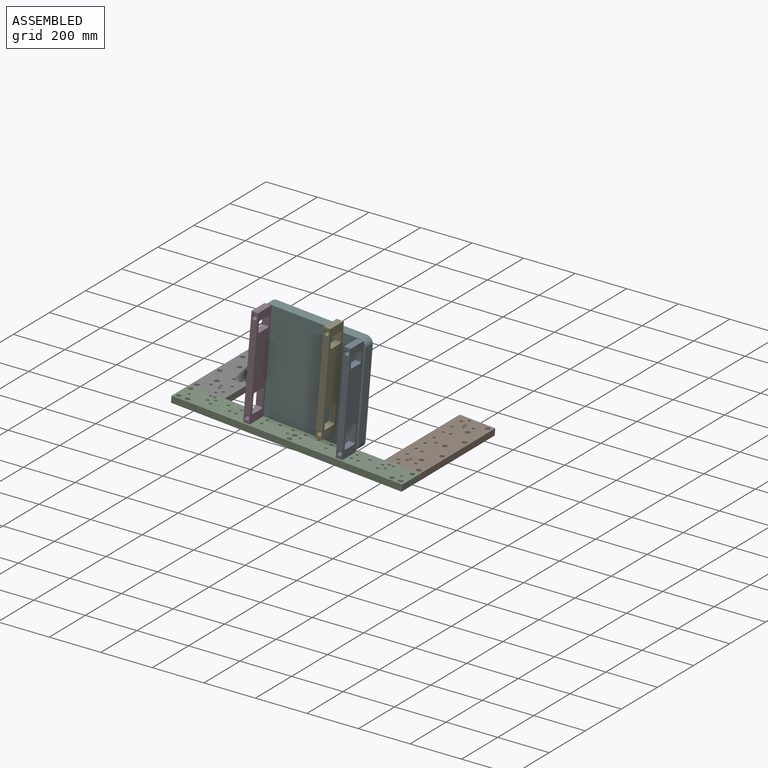
[diagram: assembled view]
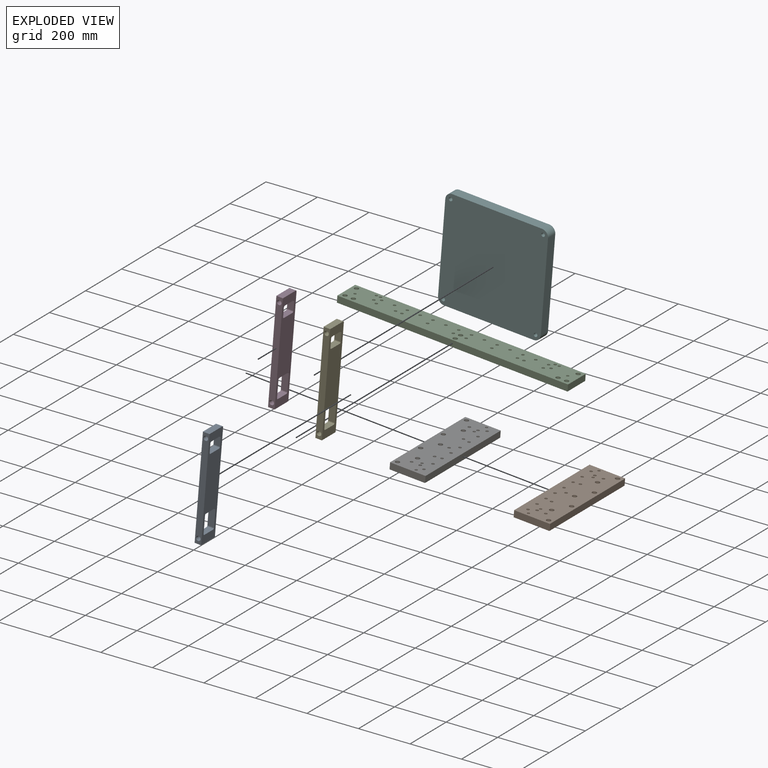
[diagram: exploded view]
GUIDED TOUR — MATED ASSEMBLY (Onshape document a9ae81b943653e950b26079e, AutoMate assembly a9ae81b943653e950b26079e_a7e712e7776d5e4f3e4a3951_ff51b67d0b98021b33cd613c_default)

This assembly has 7 components, labeled P0..P6 below (a component is one placed occurrence of a part; the same part can appear more than once), held together by 12 mates. A mate is a constraint between two components; its type names the relative motion it leaves free:
  CYLINDRICAL — leaves both rotation about and translation along the listed axis free,
  PLANAR — leaves sliding in the plane through the listed point (normal = the listed direction) and rotation about that normal free.
Axis/direction vectors are unit vectors and 'through' points are millimeter coordinates, both in the assembly's world frame.

MATES
  1. PLANAR "Planar 6": P1 <-> P2, direction (0.000, -1.000, 0.000) through (-307.10, 135.23, -792.93) mm
  2. PLANAR "Planar 4": P2 <-> P6, direction (0.081, 0.000, 0.997) through (-1027.70, 90.23, -721.72) mm
  3. CYLINDRICAL "Cylindrical 3": P5 <-> P3, axis (0.000, 1.000, 0.000) through (-814.91, 129.65, -357.74) mm
  4. PLANAR "Planar 11": P0 <-> P5, direction (0.000, 1.000, 0.000) through (-470.86, 119.65, -568.92) mm
  5. PLANAR "Planar 2": P6 <-> P2, direction (-0.997, 0.000, 0.081) through (-1132.39, 343.73, -725.97) mm
  6. PLANAR "Planar 5": P1 <-> P2, direction (0.081, 0.000, 0.997) through (-320.03, 264.23, -779.14) mm
  7. PLANAR "Planar 7": P1 <-> P2, direction (0.997, 0.000, -0.081) through (-237.33, 344.23, -798.59) mm
  8. CYLINDRICAL "Cylindrical 1": P0 <-> P5, axis (0.000, 1.000, 0.000) through (-485.20, 43.45, -745.67) mm
  9. PLANAR "Planar 13": P3 <-> P2, direction (-0.081, 0.000, -0.997) through (-845.64, 81.55, -736.49) mm
  10. PLANAR "Planar 14": P3 <-> P5, direction (0.000, 1.000, 0.000) through (-829.68, 119.65, -539.81) mm
  11. PLANAR "Planar 12": P0 <-> P5, direction (0.000, 1.000, 0.000) through (-470.86, 119.65, -568.92) mm
  12. PLANAR "Planar 3": P2 <-> P6, direction (0.000, 1.000, 0.000) through (-684.86, 135.23, -762.28) mm

ASSEMBLY ORDER
  1. P4 — the base component [order verified]
  2. P3 [order verified]
  3. P0 [order verified]
  4. P2 [order verified]
  5. P5 [order verified]
  6. P6 [order verified]
  7. P1 [order verified]
Order-tag legend:
  [order verified] — this step's position reverses a verified removal order: the component was checked to insert without passing through the ones already placed.

Of the 7 components, 3 carry the full construction recipe — the FeatureScript program that regenerates the part's solid from scratch; the rest are supplied as boundary geometry only.
Each toured component is shown spotlighted twice — in the assembled view, then in the exploded view, where a leader line traces a displaced component back to its assembled socket (saturated green if recipe-attached, orange if geometry-only; every other component desaturated gray) — followed by its recipe or geometry summary and the mates that hold it.
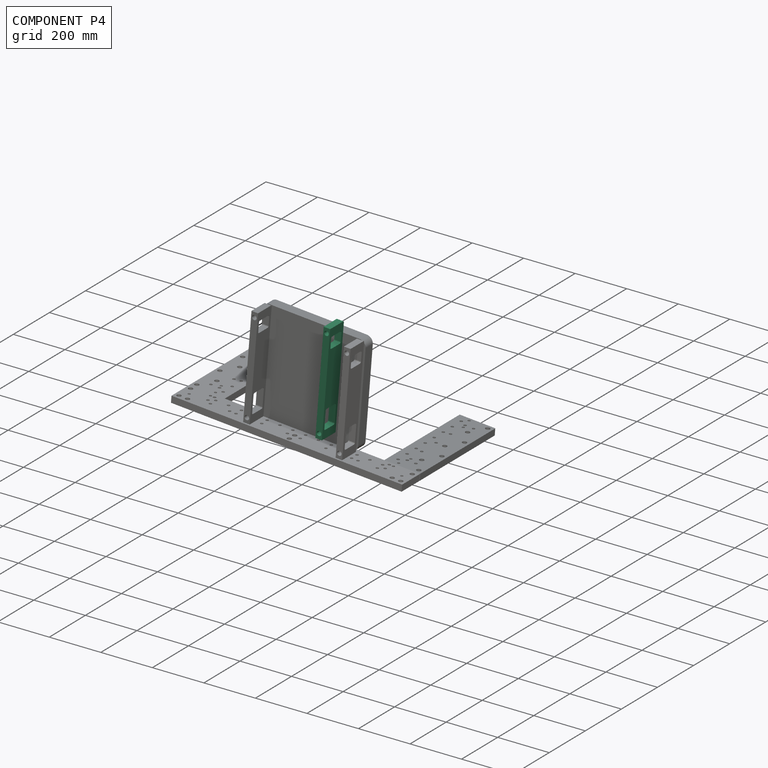
[diagram: component P4 — assembled]
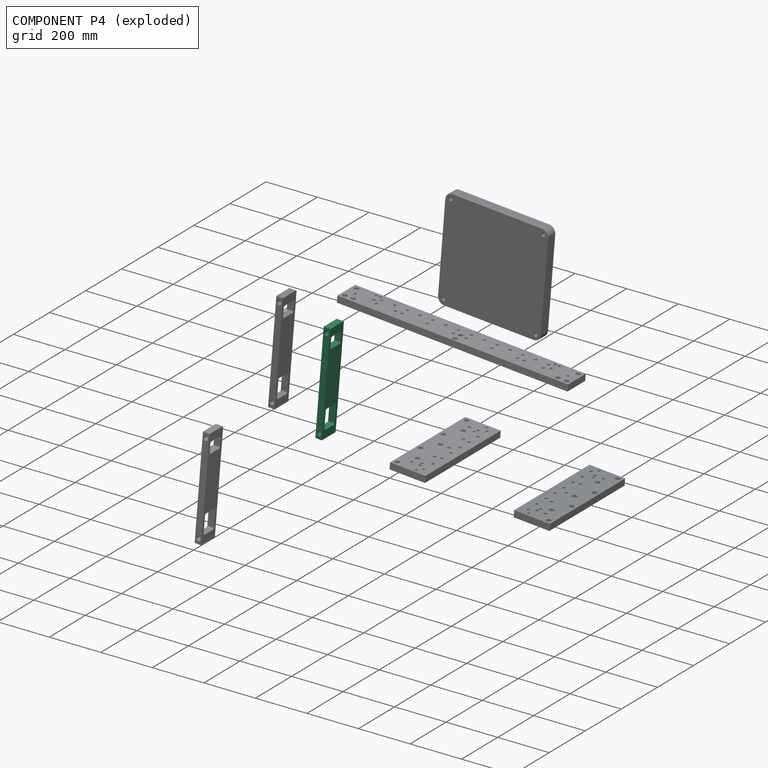
[diagram: component P4 — exploded]
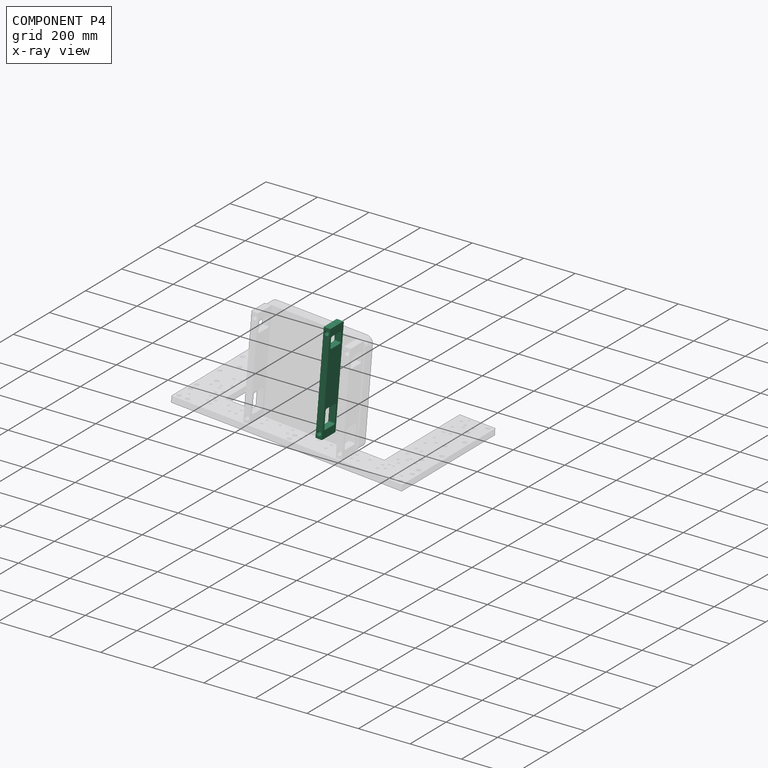
[diagram: component P4 — x-ray view]
COMPONENT P4 — same part as P0 (CADFS 00772965); its construction recipe is shown at P0.
Held by: no mates (free).
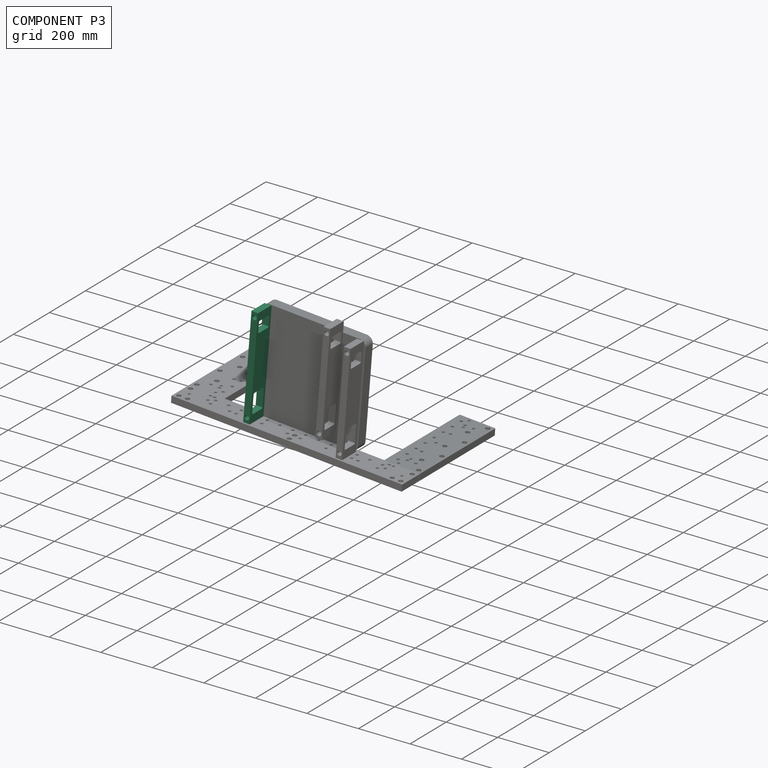
[diagram: component P3 — assembled]
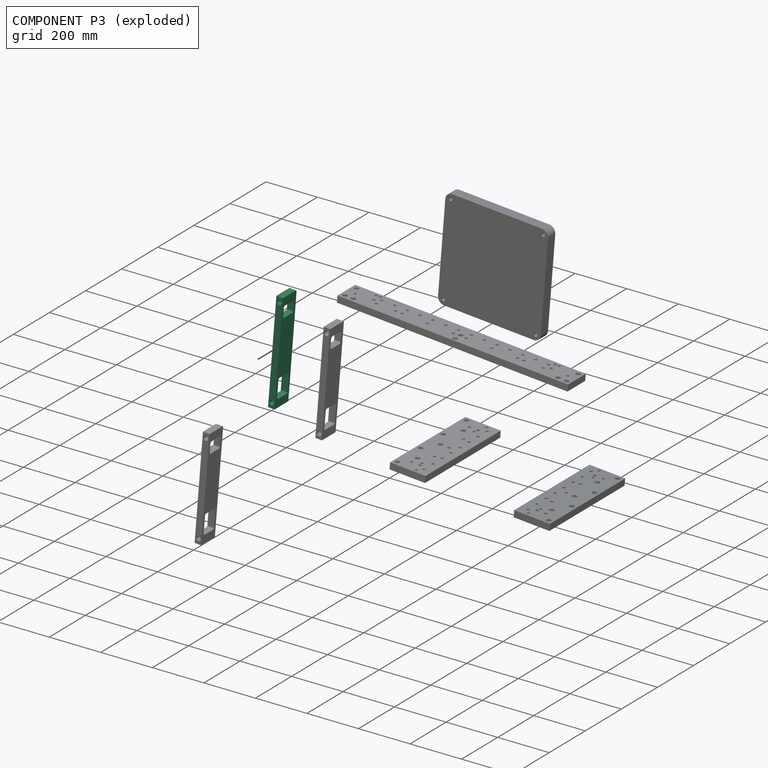
[diagram: component P3 — exploded]
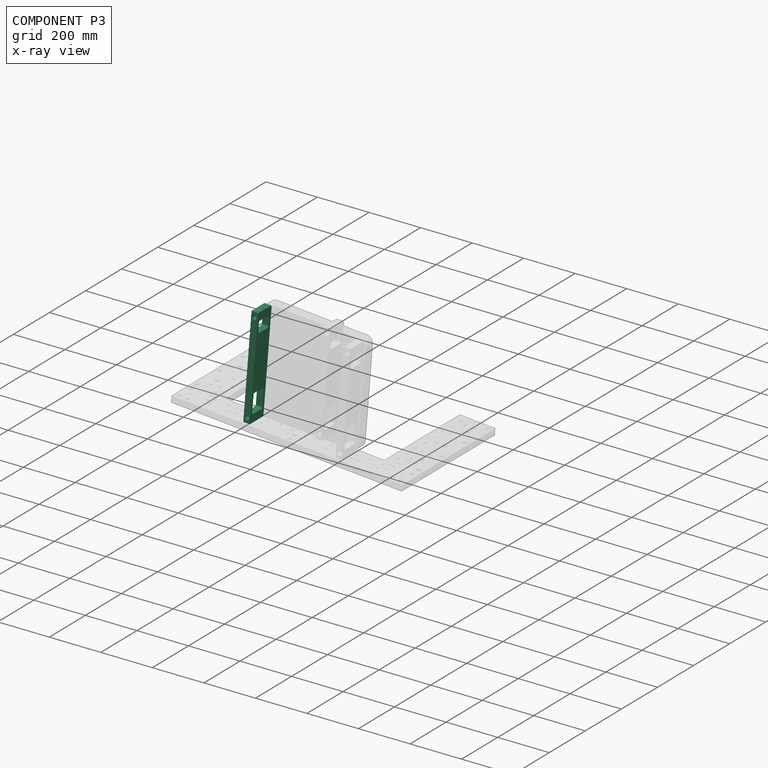
[diagram: component P3 — x-ray view]
COMPONENT P3 — same part as P0 (CADFS 00772965); its construction recipe is shown at P0.
Held by: CYLINDRICAL mate "Cylindrical 3" to P5; PLANAR mate "Planar 13" to P2; PLANAR mate "Planar 14" to P5.
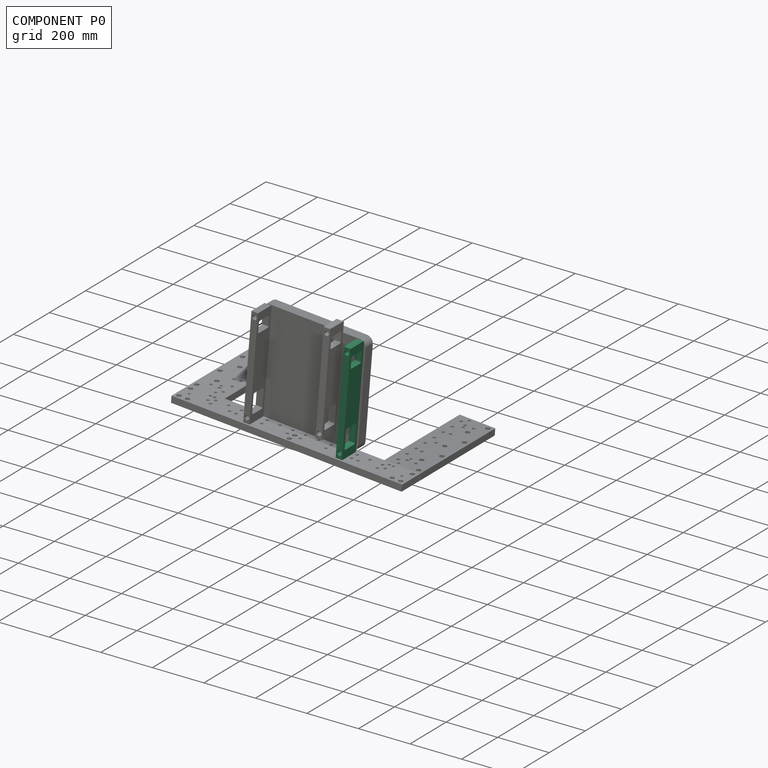
[diagram: component P0 — assembled]
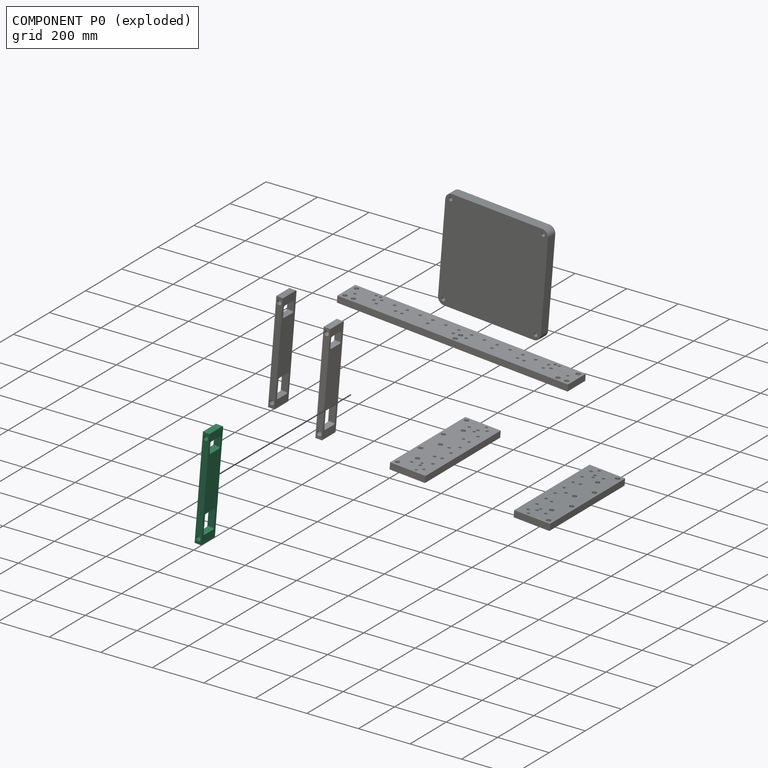
[diagram: component P0 — exploded]
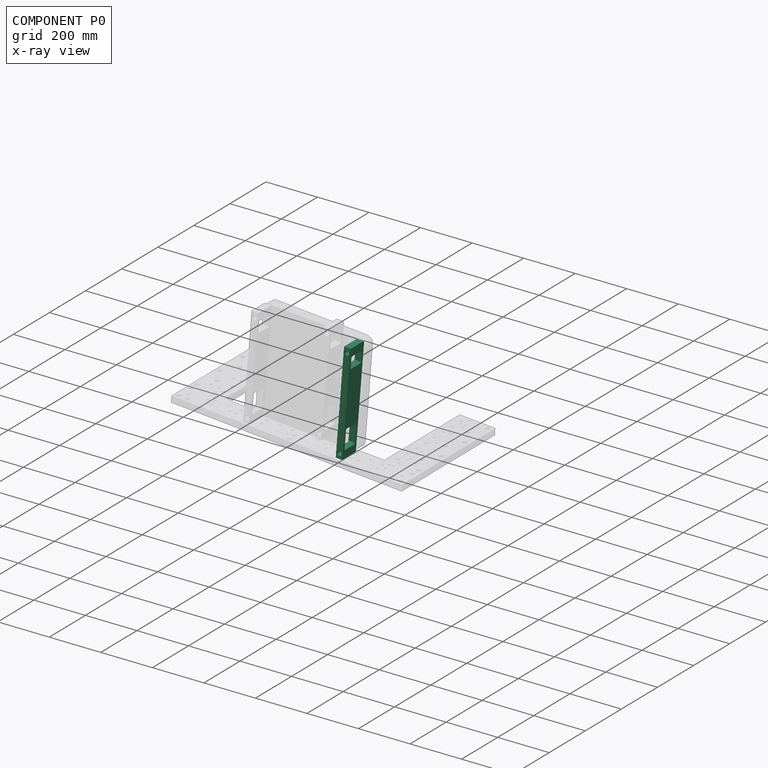
[diagram: component P0 — x-ray view]
COMPONENT P0 — recipe-attached (CADFS 00772965, mesh-verified: the recipe's output STEP matches this component's geometry to below the mesh-comparison resolution (tessellation chordal tolerance ~0.612 mm)).
Held by: PLANAR mate "Planar 11" to P5; CYLINDRICAL mate "Cylindrical 1" to P5; PLANAR mate "Planar 12" to P5.
Construction recipe (FeatureScript — the CAD program that rebuilds this solid; sketch coordinates are in the units given by the * unit suffixes, e.g. mm):

FeatureScript 1511;
import(path : "onshape/std/geometry.fs", version : "1511.0");
import(path : "onshape/std/common.fs", version : "1511.0");
const mm = millimeter;
const VERTEX = EntityType.VERTEX;
const EDGE = EntityType.EDGE;
const FACE = EntityType.FACE;
const BODY = EntityType.BODY;
function v(x, y){return vector(x, y);}
function OD(order){return orderDisambiguation(order);}
function OSD(set){return originalSetDisambiguation(set);}
function TD(topology){return topologyDisambiguation(topology);}
function TDD(query){return trueDependencyDisambiguation(query);}
function sQuery(a, b, c) {return sketchEntityQuery(a, b, c);}

annotation { "Feature Type Name" : "Feature", "Feature Type Description" : "" }
export const myFeature = defineFeature(function(context is Context, id is Id, definition is map)
    precondition{}
    {
        {
            var Q0;
            Q0=qCreatedBy(makeId("Front.planeOp"),FACE);
            var sketch = newSketch(context, id + "F0", { "sketchPlane" : qUnion([Q0])});
            skLineSegment(sketch, "E0", {"start": v(0, 0) * mm, "end": v(0, 400) * mm});
            skLineSegment(sketch, "E1", {"start": v(0, 400) * mm, "end": v(76.2, 400) * mm});
            skLineSegment(sketch, "E2", {"start": v(0, 0) * mm, "end": v(76.2, 0) * mm});
            skLineSegment(sketch, "E3", {"start": v(76.2, 0) * mm, "end": v(76.2, 400) * mm});
            skLineSegment(sketch, "E4", {"start": v(76.2, 400) * mm, "end": v(76.2, 400) * mm});
            skSolve(sketch);
        }
        {
            var Q0;
            Q0=makeQuery(id+"F0.imprint","IMPRINT",FACE,{"disambiguationData":[TD([[makeQuery(id+"F0.imprint","IMPRINT",EDGE,{"derivedFrom":sQuery(id+"F0.wireOp",EDGE,"E0")}),-1.0]])]});
            extrude(context, id + "F1", {"entities" : qUnion([Q0]), "depth" : 25.4 * mm, "offsetDistance" : 25.4 * mm});
        }
        {
            var Q0;
            Q0=makeQuery(id+"F1.opExtrude","SWEPT_FACE",FACE,{"disambiguationData":[OSD([sQuery(id+"F0.wireOp",EDGE,"E3")])]});
            var sketch = newSketch(context, id + "F2", { "sketchPlane" : qUnion([Q0])});
            skLineSegment(sketch, "E5", {"start": v(-12.7, 0) * mm, "end": v(-12.7, 20) * mm});
            skLineSegment(sketch, "E6", {"start": v(-12.7, 20) * mm, "end": v(-12.7, 380) * mm});
            skSolve(sketch);
        }
        {
            var Q0;
            Q0=sQuery(id+"F2.wireOp",VERTEX,"E6.end");
            var Q1;
            Q1=sQuery(id+"F2.wireOp",VERTEX,"E5.end");
            var Q2;
            Q2=makeQuery(id+"F1.opExtrude","SWEPT_BODY",BODY,{"disambiguationData":[OSD([sQuery(id+"F0.wireOp",EDGE,"E0"),sQuery(id+"F0.wireOp",EDGE,"E1"),sQuery(id+"F0.wireOp",EDGE,"E2"),sQuery(id+"F0.wireOp",EDGE,"E3")])]});
            hole(context, id + "F3", {"style" : HoleStyle.SIMPLE, "endStyle" : HoleEndStyle.THROUGH, "standardTappedOrClearance" : lookupTablePath({ "standard" : "ISO", "fit" : "Normal", "size" : "M16", "type" : "Clearance" }), "standardBlindInLast" : lookupTablePath({ "fit" : "Standard", "standard" : "ISO", "size" : "M16", "type" : "Clearance" }), "holeDiameter" : 17.5 * mm, "majorDiameter" : 6.35 * mm, "tappedDepth" : 19.4 * mm, "tapClearance" : 3, "locations" : qUnion([Q0, Q1]), "scope" : qUnion([Q2])});
        }
        {
            var Q0;
            Q0=makeQuery(id+"F1.opExtrude","CAP_FACE",FACE,{"disambiguationData":[OSD([sQuery(id+"F0.wireOp",EDGE,"E0"),sQuery(id+"F0.wireOp",EDGE,"E1"),sQuery(id+"F0.wireOp",EDGE,"E2"),sQuery(id+"F0.wireOp",EDGE,"E3")])],"isStart":false});
            var sketch = newSketch(context, id + "F4", { "sketchPlane" : qUnion([Q0])});
            skLineSegment(sketch, "E7", {"start": v(0, 0) * mm, "end": v(9.53, 0) * mm});
            skLineSegment(sketch, "E8", {"start": v(76.2, 0) * mm, "end": v(66.67, 0) * mm});
            skLineSegment(sketch, "E9", {"start": v(66.67, 0) * mm, "end": v(66.67, 32) * mm});
            skLineSegment(sketch, "E10", {"start": v(9.53, 0) * mm, "end": v(9.53, 32) * mm});
            skLineSegment(sketch, "E11.bottom", {"start": v(9.52, 32) * mm, "end": v(66.68, 32) * mm});
            skLineSegment(sketch, "E11.top", {"start": v(9.52, 108.2) * mm, "end": v(66.67, 108.2) * mm});
            skLineSegment(sketch, "E11.left", {"start": v(9.53, 32) * mm, "end": v(9.53, 108.2) * mm});
            skLineSegment(sketch, "E11.right", {"start": v(66.68, 32) * mm, "end": v(66.67, 108.2) * mm});
            skLineSegment(sketch, "E12", {"start": v(0, 200) * mm, "end": v(22.17, 200) * mm});
            skLineSegment(sketch, "E13.MirrorCS", {"start": v(9.52, 368) * mm, "end": v(66.68, 368) * mm});
            skLineSegment(sketch, "E14.top", {"start": v(9.52, 323.55) * mm, "end": v(66.68, 323.55) * mm});
            skLineSegment(sketch, "E14.left", {"start": v(9.52, 368) * mm, "end": v(9.52, 323.55) * mm});
            skLineSegment(sketch, "E14.right", {"start": v(66.68, 368) * mm, "end": v(66.68, 323.55) * mm});
            skSolve(sketch);
        }
        {
            var Q0;
            Q0=makeQuery(id+"F4.imprint","IMPRINT",FACE,{"disambiguationData":[TD([[makeQuery(id+"F4.imprint","IMPRINT",EDGE,{"derivedFrom":sQuery(id+"F4.wireOp",EDGE,"E11.bottom")}),1.0]])]});
            var Q1;
            Q1=makeQuery(id+"F4.imprint","IMPRINT",FACE,{"disambiguationData":[TD([[makeQuery(id+"F4.imprint","IMPRINT",EDGE,{"derivedFrom":sQuery(id+"F4.wireOp",EDGE,"E13.MirrorCS")}),-1.0]])]});
            extrude(context, id + "F5", {"entities" : qUnion([Q0, Q1]), "operationType" : NewBodyOperationType.REMOVE, "endBound" : BoundingType.THROUGH_ALL, "oppositeDirection" : true, "depth" : 25.4 * mm, "offsetDistance" : 25.4 * mm});
        }
        {
            var Q0;
            Q0=makeQuery(id+"F5.boolean.opBoolean","COPY",EDGE,{"derivedFrom":makeQuery(id+"F5.opExtrude","SWEPT_EDGE",EDGE,{"disambiguationData":[OSD([sQuery(id+"F4.wireOp",EDGE,"E11.top"),sQuery(id+"F4.wireOp",EDGE,"E11.left")])]})});
            var Q1;
            Q1=makeQuery(id+"F5.boolean.opBoolean","COPY",EDGE,{"derivedFrom":makeQuery(id+"F5.opExtrude","SWEPT_EDGE",EDGE,{"disambiguationData":[OSD([sQuery(id+"F4.wireOp",EDGE,"E11.top"),sQuery(id+"F4.wireOp",EDGE,"E11.right")])]})});
            var Q2;
            Q2=makeQuery(id+"F5.boolean.opBoolean","COPY",EDGE,{"derivedFrom":makeQuery(id+"F5.opExtrude","SWEPT_EDGE",EDGE,{"disambiguationData":[OSD([sQuery(id+"F4.wireOp",EDGE,"E9"),sQuery(id+"F4.wireOp",EDGE,"E11.bottom"),sQuery(id+"F4.wireOp",EDGE,"E11.right")])]})});
            var Q3;
            Q3=makeQuery(id+"F5.boolean.opBoolean","COPY",EDGE,{"derivedFrom":makeQuery(id+"F5.opExtrude","SWEPT_EDGE",EDGE,{"disambiguationData":[OSD([sQuery(id+"F4.wireOp",EDGE,"E10"),sQuery(id+"F4.wireOp",EDGE,"E11.bottom"),sQuery(id+"F4.wireOp",EDGE,"E11.left")])]})});
            var Q4;
            Q4=makeQuery(id+"F5.boolean.opBoolean","COPY",EDGE,{"derivedFrom":makeQuery(id+"F5.opExtrude","SWEPT_EDGE",EDGE,{"disambiguationData":[OSD([sQuery(id+"F4.wireOp",EDGE,"E14.top"),sQuery(id+"F4.wireOp",EDGE,"E14.left")])]})});
            var Q5;
            Q5=makeQuery(id+"F5.boolean.opBoolean","COPY",EDGE,{"derivedFrom":makeQuery(id+"F5.opExtrude","SWEPT_EDGE",EDGE,{"disambiguationData":[OSD([sQuery(id+"F4.wireOp",EDGE,"E14.top"),sQuery(id+"F4.wireOp",EDGE,"E14.right")])]})});
            var Q6;
            Q6=makeQuery(id+"F5.boolean.opBoolean","COPY",EDGE,{"derivedFrom":makeQuery(id+"F5.opExtrude","SWEPT_EDGE",EDGE,{"disambiguationData":[OSD([sQuery(id+"F4.wireOp",EDGE,"E13.MirrorCS"),sQuery(id+"F4.wireOp",EDGE,"E14.left")])]})});
            var Q7;
            Q7=makeQuery(id+"F5.boolean.opBoolean","COPY",EDGE,{"derivedFrom":makeQuery(id+"F5.opExtrude","SWEPT_EDGE",EDGE,{"disambiguationData":[OSD([sQuery(id+"F4.wireOp",EDGE,"E13.MirrorCS"),sQuery(id+"F4.wireOp",EDGE,"E14.right")])]})});
            fillet(context, id + "F6", {"entities" : qUnion([Q0, Q1, Q2, Q3, Q4, Q5, Q6, Q7]), "radius" : 5.08 * mm, "tangentPropagation" : true, "allowEdgeOverflow" : false});
        }
        {
            var Q0;
            Q0=makeQuery(id+"F1.opExtrude","SWEPT_EDGE",EDGE,{"disambiguationData":[OSD([sQuery(id+"F0.wireOp",EDGE,"E1"),sQuery(id+"F0.wireOp",EDGE,"E3")])]});
            fillet(context, id + "F7", {"entities" : qUnion([Q0]), "radius" : 5.08 * mm, "tangentPropagation" : true, "allowEdgeOverflow" : false});
        }
    });
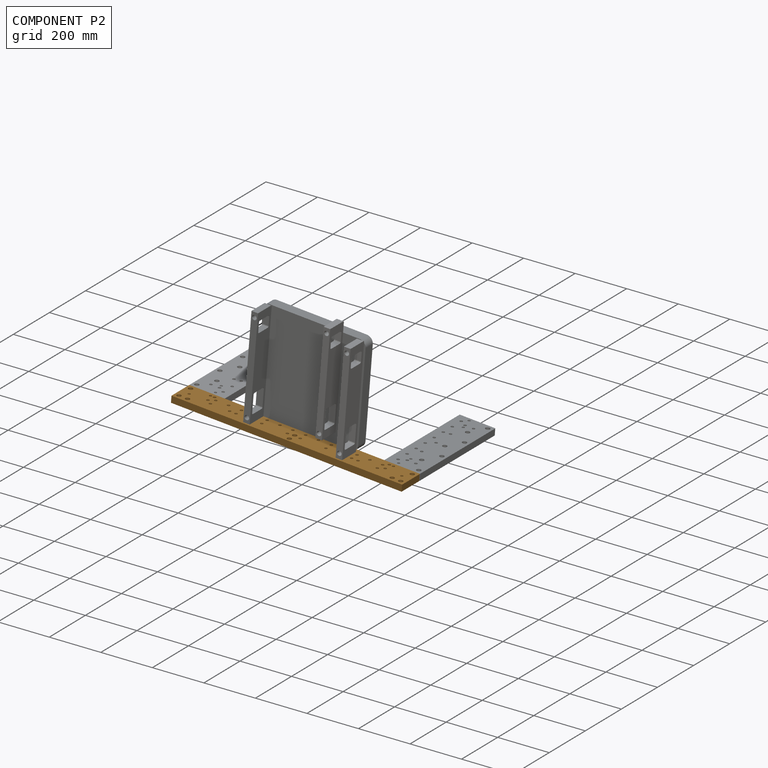
[diagram: component P2 — assembled]
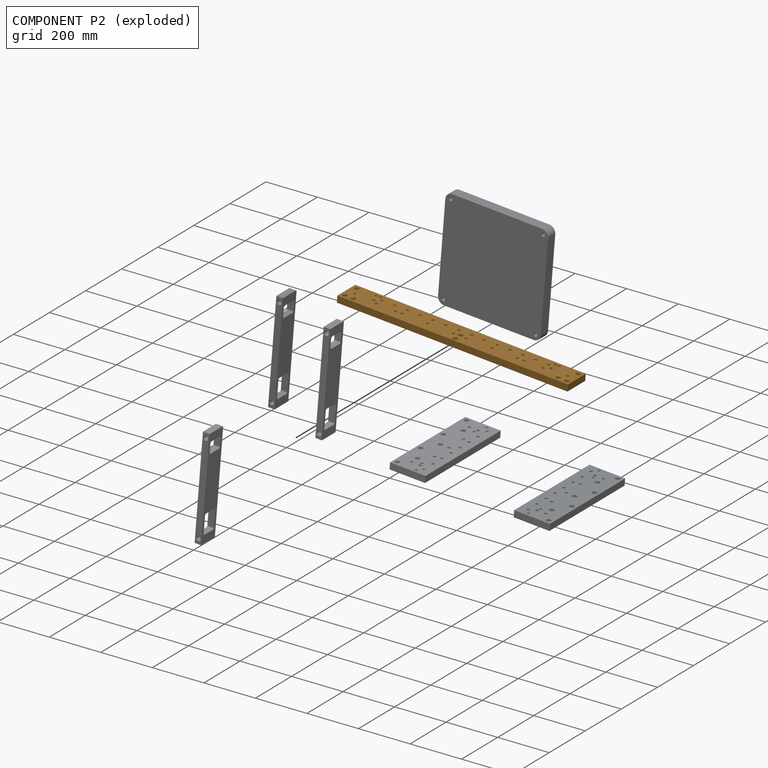
[diagram: component P2 — exploded]
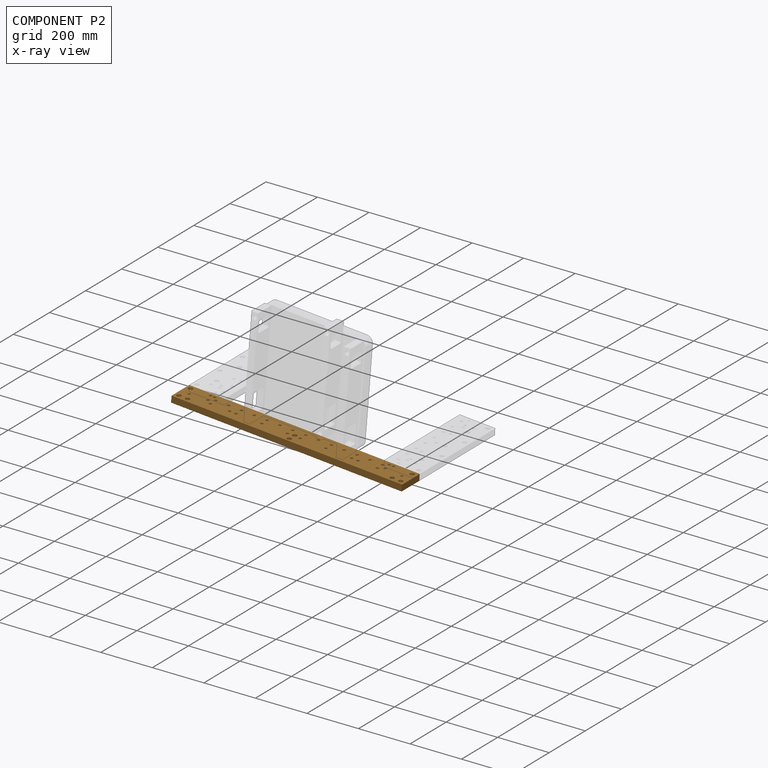
[diagram: component P2 — x-ray view]
COMPONENT P2 — geometry summary (no construction recipe available for this part):
  bounding box: 898.0 x 99.0 x 25.4 mm
  B-rep topology: 1 solid, 50 faces, 288 edges
  volume: 2136396 mm^3 (95% of its bounding box)
  symmetry: 2-fold rotationally symmetric about the y axis; mirror-symmetric across its x mid-plane, z mid-plane
Held by: PLANAR mate "Planar 6" to P1; PLANAR mate "Planar 4" to P6; PLANAR mate "Planar 2" to P6; PLANAR mate "Planar 5" to P1; PLANAR mate "Planar 7" to P1; PLANAR mate "Planar 13" to P3; PLANAR mate "Planar 3" to P6.
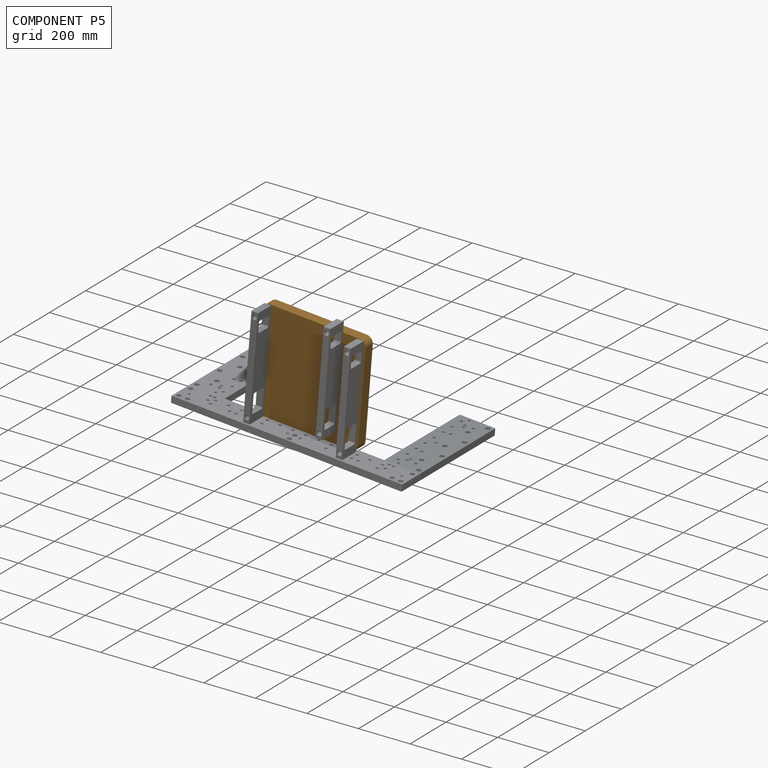
[diagram: component P5 — assembled]
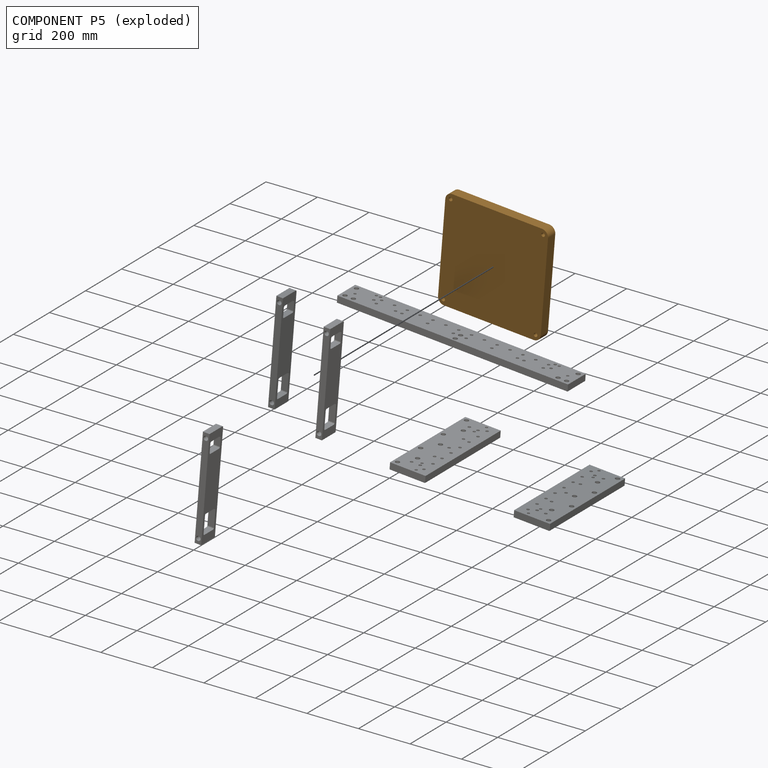
[diagram: component P5 — exploded]
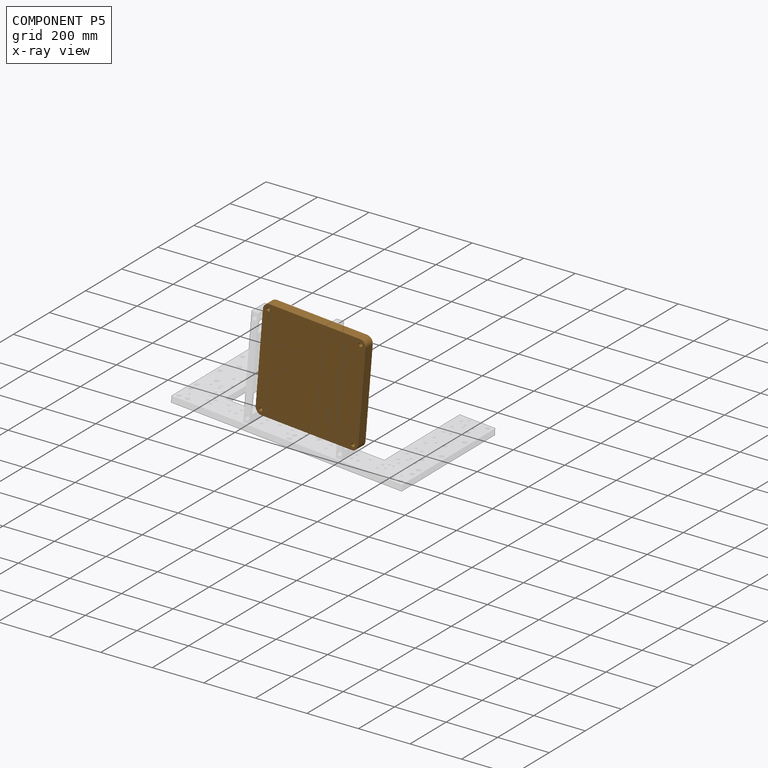
[diagram: component P5 — x-ray view]
COMPONENT P5 — geometry summary (no construction recipe available for this part):
  bounding box: 400.0 x 400.0 x 40.0 mm
  B-rep topology: 1 solid, 22 faces, 96 edges
  volume: 6324676 mm^3 (99% of its bounding box)
  symmetry: 4-fold rotationally symmetric about the y axis; mirror-symmetric across its x mid-plane, z mid-plane
Held by: CYLINDRICAL mate "Cylindrical 3" to P3; PLANAR mate "Planar 11" to P0; CYLINDRICAL mate "Cylindrical 1" to P0; PLANAR mate "Planar 14" to P3; PLANAR mate "Planar 12" to P0.
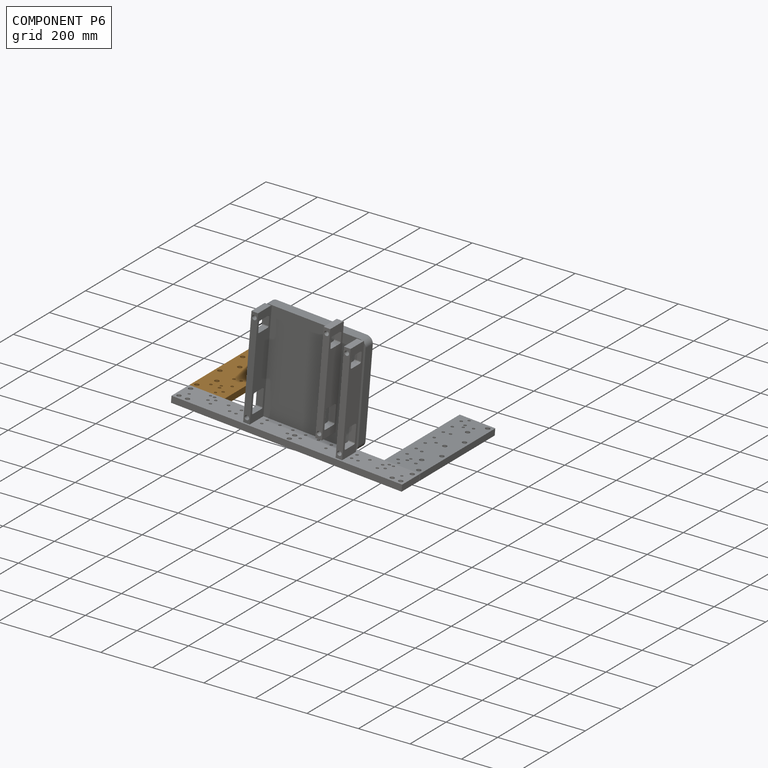
[diagram: component P6 — assembled]
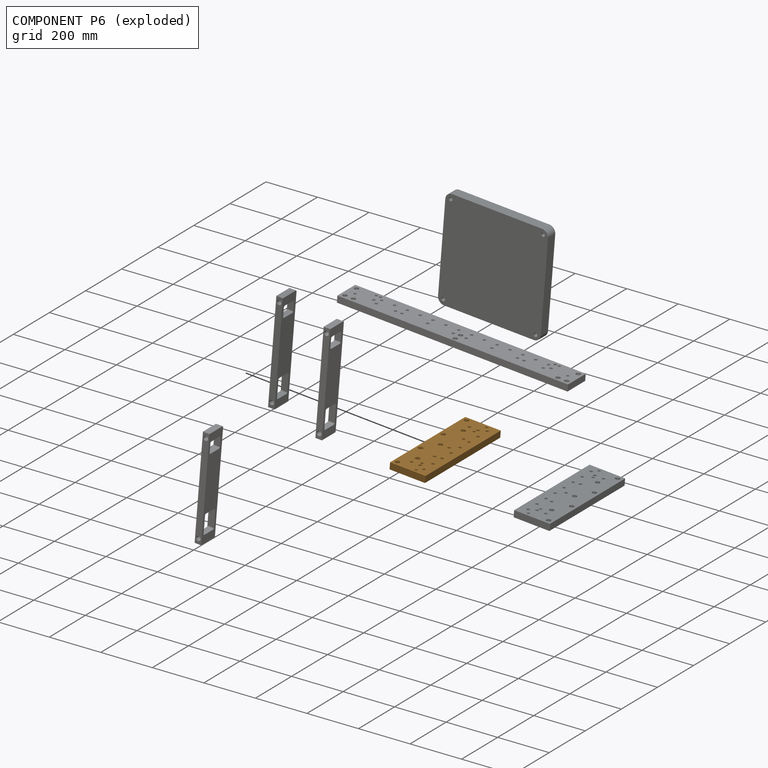
[diagram: component P6 — exploded]
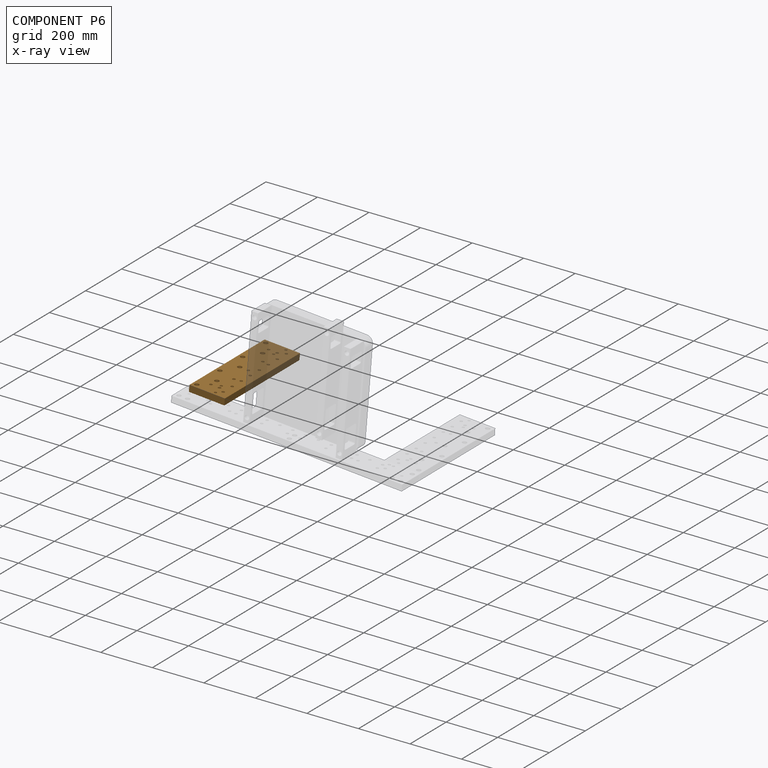
[diagram: component P6 — x-ray view]
COMPONENT P6 — geometry summary (no construction recipe available for this part):
  bounding box: 417.0 x 138.0 x 25.4 mm
  B-rep topology: 1 solid, 32 faces, 180 edges
  volume: 1377124 mm^3 (94% of its bounding box)
  symmetry: 2-fold rotationally symmetric about the x axis; mirror-symmetric across its y mid-plane, z mid-plane
Held by: PLANAR mate "Planar 4" to P2; PLANAR mate "Planar 2" to P2; PLANAR mate "Planar 3" to P2.
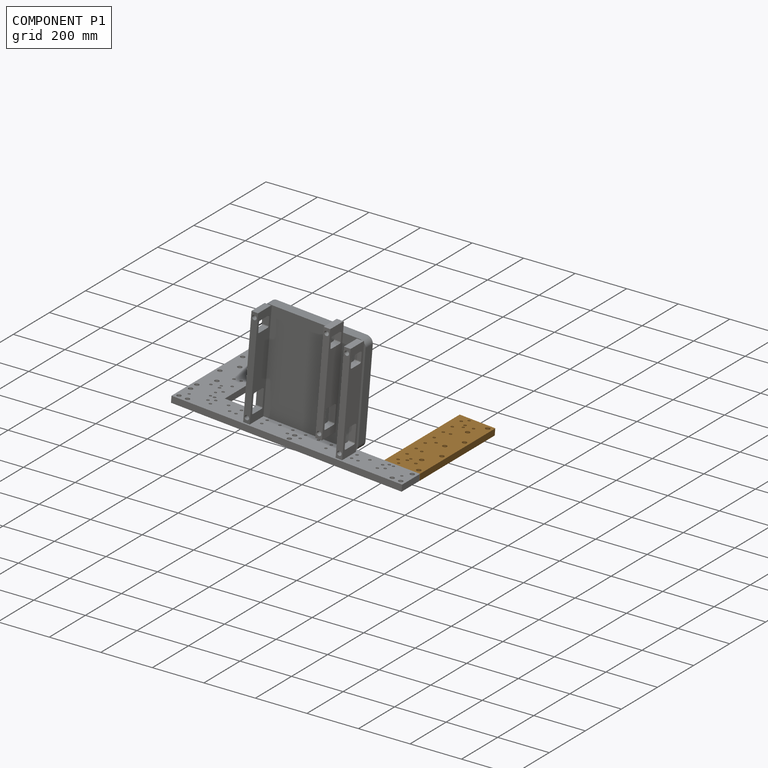
[diagram: component P1 — assembled]
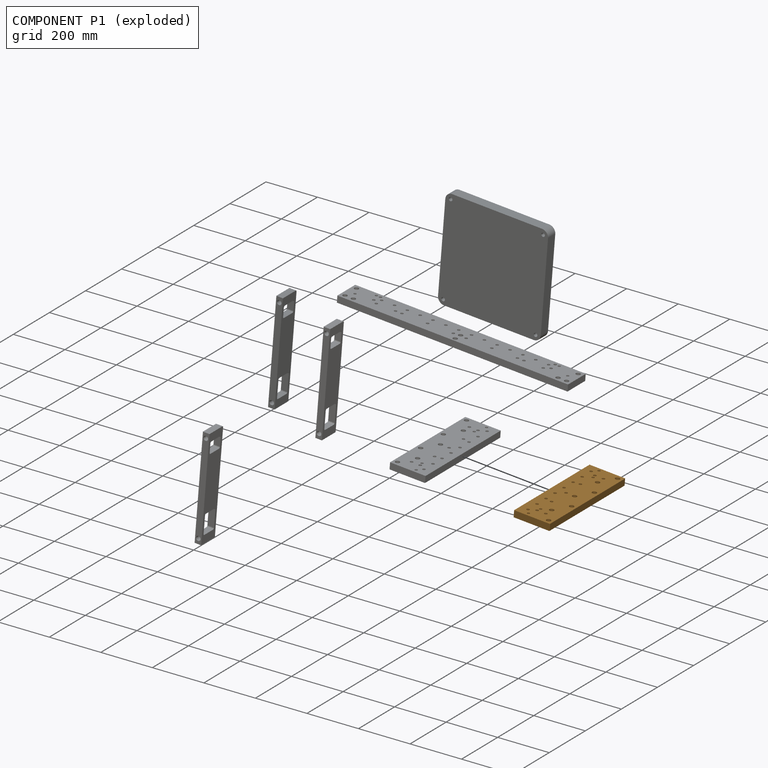
[diagram: component P1 — exploded]
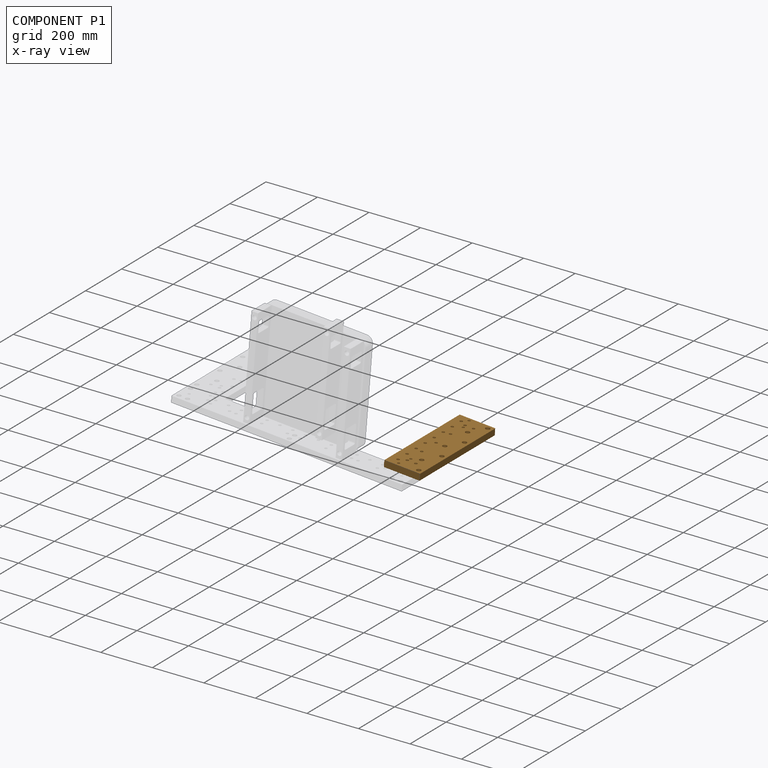
[diagram: component P1 — x-ray view]
COMPONENT P1 — geometry summary (no construction recipe available for this part):
  bounding box: 418.0 x 139.0 x 25.4 mm
  B-rep topology: 1 solid, 37 faces, 210 edges
  volume: 1391218 mm^3 (94% of its bounding box)
  symmetry: 2-fold rotationally symmetric about the x axis; mirror-symmetric across its y mid-plane, z mid-plane
Held by: PLANAR mate "Planar 6" to P2; PLANAR mate "Planar 5" to P2; PLANAR mate "Planar 7" to P2.
PROVENANCE & LICENSES
Assembly (occurrences, transforms, mates, per-part STEP geometry): AutoMate dataset, Zenodo record 7776208, CC0.
Construction recipes: CADFS (HuggingFace VladPyatov/CADFS, CC-BY-4.0, layered over the ABC dataset), FeatureScript reconstruction programs keyed by ABC model id.
Join: ABC meta listings map ABC model id -> Onshape documentId; within a shared document, parts are matched by geometric signature (bounding-box dims + volume at 0.1% relative tolerance, exact B-rep face/solid counts).
Verification: 3 of this assembly's 7 components carry a recipe attachment, and every attachment is mesh-verified: the CADFS STEP and the AutoMate member STEP were compared as meshes in their shared local frame (symmetric sampled-point-to-mesh distance); worst across the 3 attachments: below the mesh-comparison resolution (tessellation chordal tolerance ~0.612 mm) on a 408 mm part.
Renders: orthographic iso camera (az 35 / el 25); the floor grid conveys scale (grid pitch printed in each image; no ruler). In the exploded view each component is displaced by its stored offset vector: the offsets alone carry the explosion direction (mate normal/axis signs are not orientation cues and do not encode it), and separation distances are assigned per mate-chain, not proportionally to assembly-order depth.
